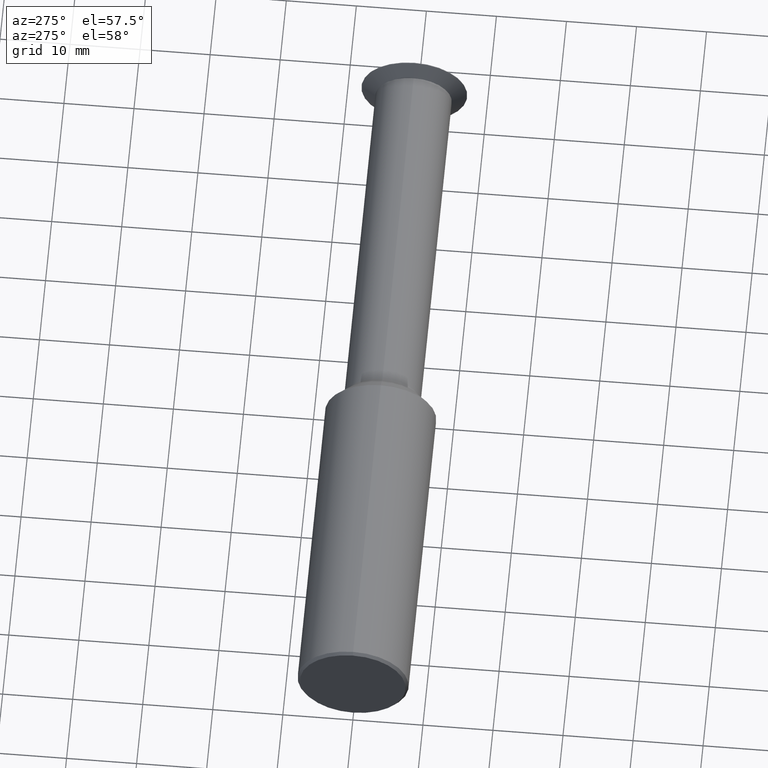
[diagram: clean part render]
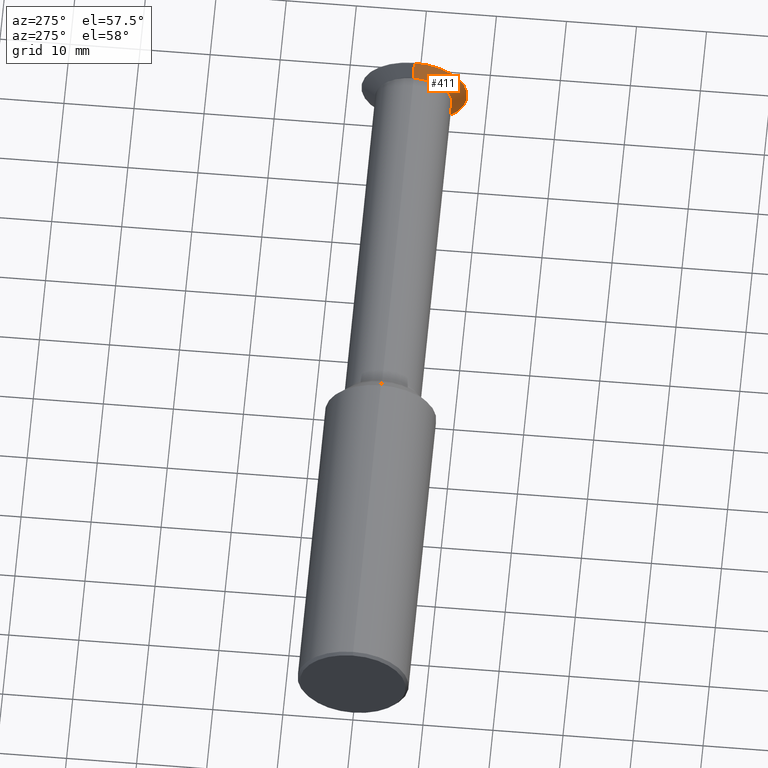
[diagram: same view with one face highlighted and labeled with its STEP entity id]
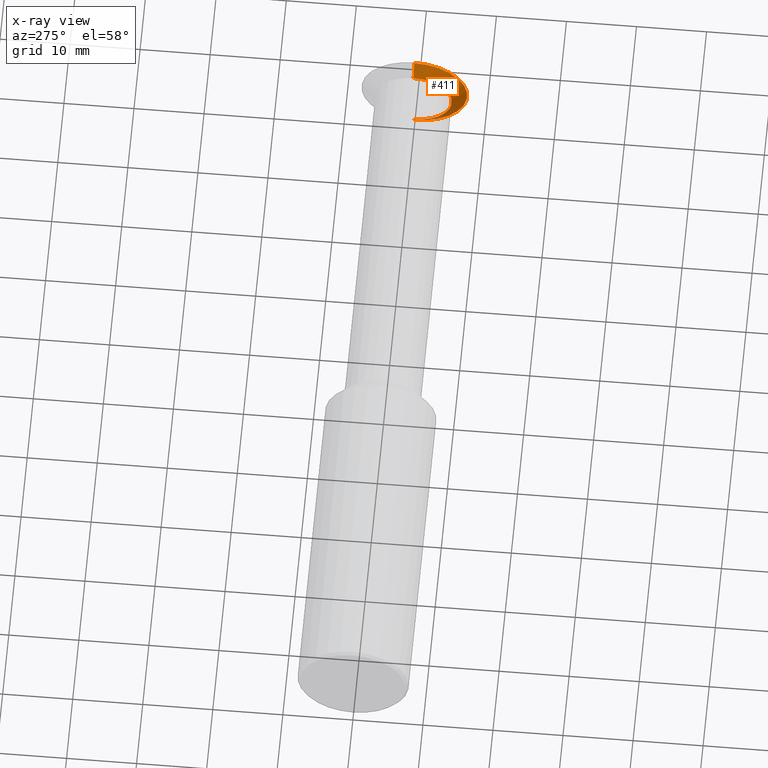
[diagram: x-ray of the same camera — body ghosted, the highlighted face saturated]
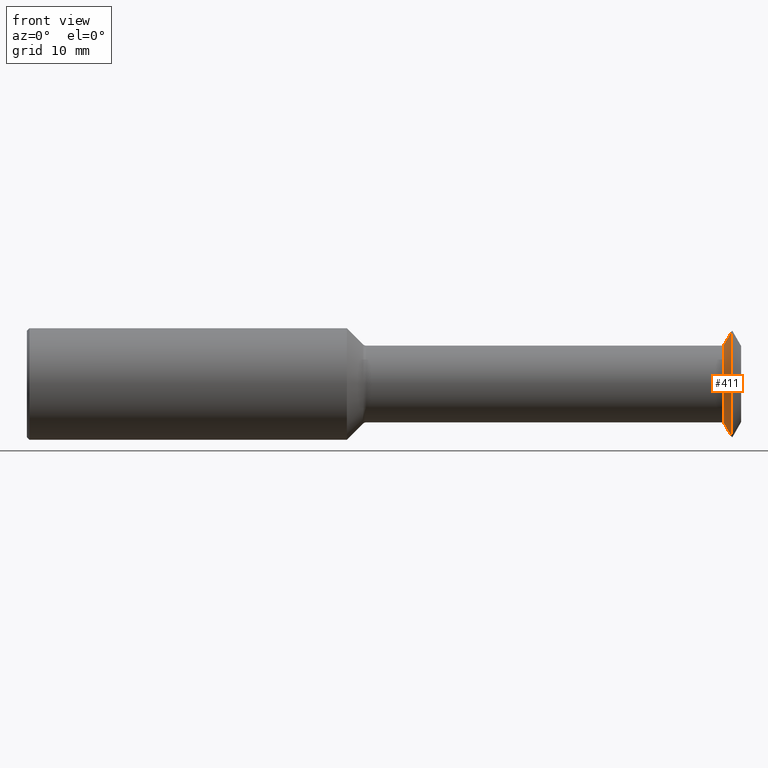
[diagram: same view with one face highlighted and labeled with its STEP entity id]
A machine part, auxiliary view. The second image highlights one B-rep face of the part: STEP entity #411.
The next image is the same camera in x-ray: the body ghosted, the highlighted face saturated — about 3% of this face is hidden behind the body in this view.
A second angle (front view) of the same face is appended — the face is thin or edge-on in the first view.
In plain terms, the highlighted conical surface has half-angle 60.15 deg.
Its self-contained STEP definition (entity closure, byte-faithful):
#16 = CARTESIAN_POINT ( 'NONE',  ( 3.947934553538009705, 0.0000000000000000000, 0.2974999999999992650 ) ) ;
#25 = CARTESIAN_POINT ( 'NONE',  ( 3.947934553538009705, 3.643324227463366491E-17, 0.2974999999999992650 ) ) ;
#29 = AXIS2_PLACEMENT_3D ( 'NONE', #182, #313, #74 ) ;
#62 = CARTESIAN_POINT ( 'NONE',  ( 3.947934553538009705, 0.0000000000000000000, -0.2974999999999992650 ) ) ;
#74 = DIRECTION ( 'NONE',  ( 0.0000000000000000000, 0.0000000000000000000, 1.000000000000000000 ) ) ;
#75 = VECTOR ( 'NONE', #282, 39.37007874015748143 ) ;
#97 = VERTEX_POINT ( 'NONE', #485 ) ;
#100 = EDGE_CURVE ( 'NONE', #227, #397, #184, .T. ) ;
#118 = EDGE_CURVE ( 'NONE', #97, #279, #488, .T. ) ;
#119 = CARTESIAN_POINT ( 'NONE',  ( 3.900590701688721573, 3.138157422815083488E-17, 0.2149999999999992473 ) ) ;
#123 = FACE_OUTER_BOUND ( 'NONE', #244, .T. ) ;
#139 = DIRECTION ( 'NONE',  ( 0.0000000000000000000, 0.0000000000000000000, -1.000000000000000000 ) ) ;
#153 = VECTOR ( 'NONE', #443, 39.37007874015748143 ) ;
#171 = ORIENTED_EDGE ( 'NONE', *, *, #118, .F. ) ;
#179 = DIRECTION ( 'NONE',  ( 1.000000000000000000, 0.0000000000000000000, 0.0000000000000000000 ) ) ;
#182 = CARTESIAN_POINT ( 'NONE',  ( 3.900590701688721573, 0.0000000000000000000, 0.0000000000000000000 ) ) ;
#184 = CIRCLE ( 'NONE', #269, 0.2974999999999992650 ) ;
#189 = DIRECTION ( 'NONE',  ( 0.0000000000000000000, 0.0000000000000000000, 1.000000000000000000 ) ) ;
#197 = ORIENTED_EDGE ( 'NONE', *, *, #305, .F. ) ;
#227 = VERTEX_POINT ( 'NONE', #460 ) ;
#232 = LINE ( 'NONE', #62, #153 ) ;
#240 = LINE ( 'NONE', #25, #75 ) ;
#244 = EDGE_LOOP ( 'NONE', ( #197, #171, #260, #314 ) ) ;
#260 = ORIENTED_EDGE ( 'NONE', *, *, #448, .T. ) ;
#261 = DIRECTION ( 'NONE',  ( -1.000000000000000000, -0.0000000000000000000, -0.0000000000000000000 ) ) ;
#269 = AXIS2_PLACEMENT_3D ( 'NONE', #441, #261, #189 ) ;
#279 = VERTEX_POINT ( 'NONE', #119 ) ;
#282 = DIRECTION ( 'NONE',  ( 0.4977310399126166907, 1.062174661273173415E-16, 0.8673314314075705189 ) ) ;
#305 = EDGE_CURVE ( 'NONE', #279, #397, #240, .T. ) ;
#313 = DIRECTION ( 'NONE',  ( -1.000000000000000000, -0.0000000000000000000, -0.0000000000000000000 ) ) ;
#314 = ORIENTED_EDGE ( 'NONE', *, *, #100, .T. ) ;
#328 = CONICAL_SURFACE ( 'NONE', #340, 0.2974999999999992650, 1.049815545074584078 ) ;
#340 = AXIS2_PLACEMENT_3D ( 'NONE', #421, #179, #139 ) ;
#397 = VERTEX_POINT ( 'NONE', #16 ) ;
#411 = ADVANCED_FACE ( 'NONE', ( #123 ), #328, .T. ) ;
#421 = CARTESIAN_POINT ( 'NONE',  ( 3.947934553538009705, 0.0000000000000000000, 0.0000000000000000000 ) ) ;
#441 = CARTESIAN_POINT ( 'NONE',  ( 3.947934553538009705, 0.0000000000000000000, 0.0000000000000000000 ) ) ;
#443 = DIRECTION ( 'NONE',  ( 0.4977310399126166907, 0.0000000000000000000, -0.8673314314075705189 ) ) ;
#448 = EDGE_CURVE ( 'NONE', #97, #227, #232, .T. ) ;
#460 = CARTESIAN_POINT ( 'NONE',  ( 3.947934553538009705, 3.643324227463366491E-17, -0.2974999999999992650 ) ) ;
#485 = CARTESIAN_POINT ( 'NONE',  ( 3.900590701688721573, 0.0000000000000000000, -0.2149999999999992473 ) ) ;
#488 = CIRCLE ( 'NONE', #29, 0.2149999999999992473 ) ;